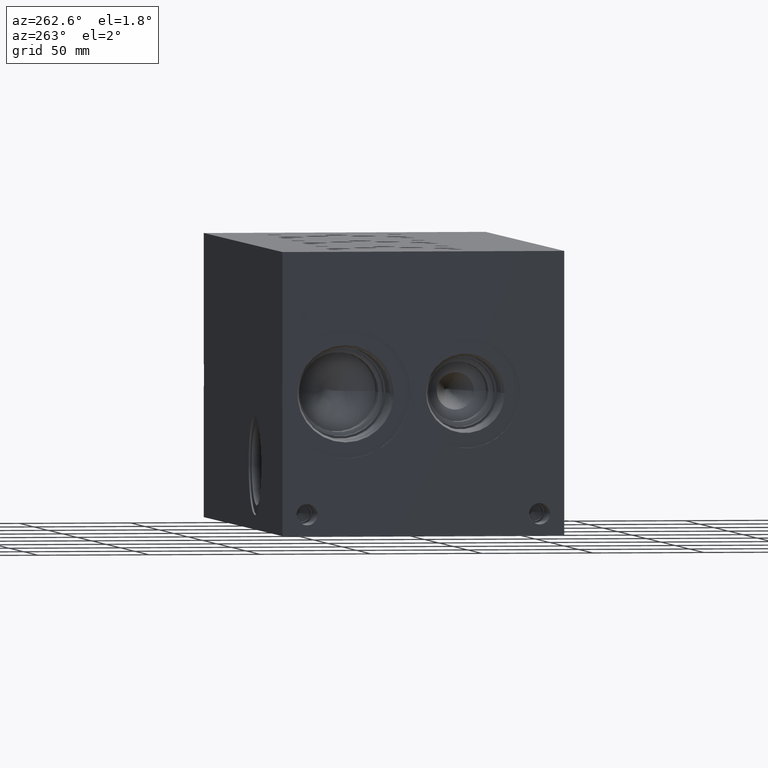
[diagram: clean part render]
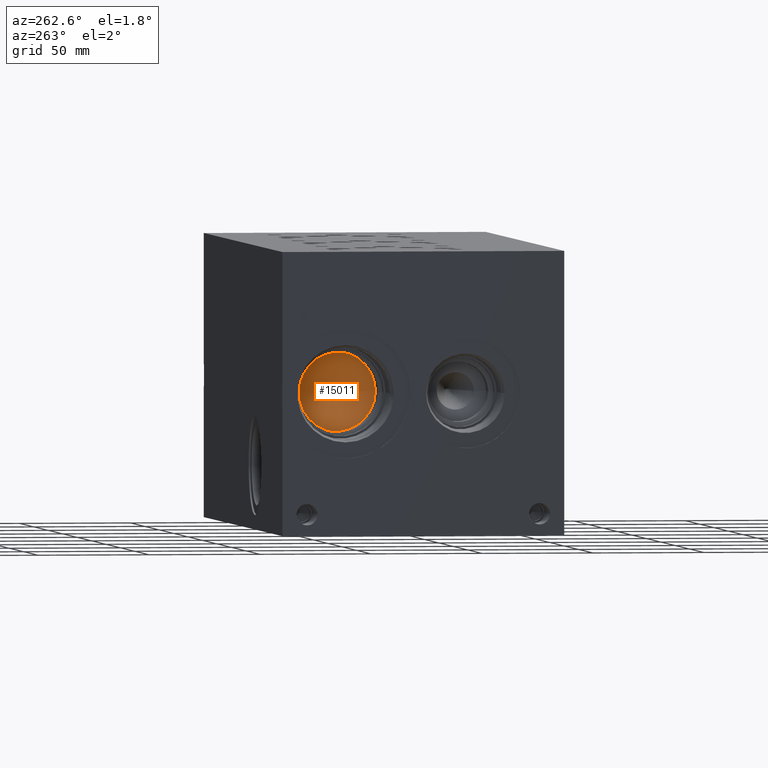
[diagram: same view with one face highlighted and labeled with its STEP entity id]
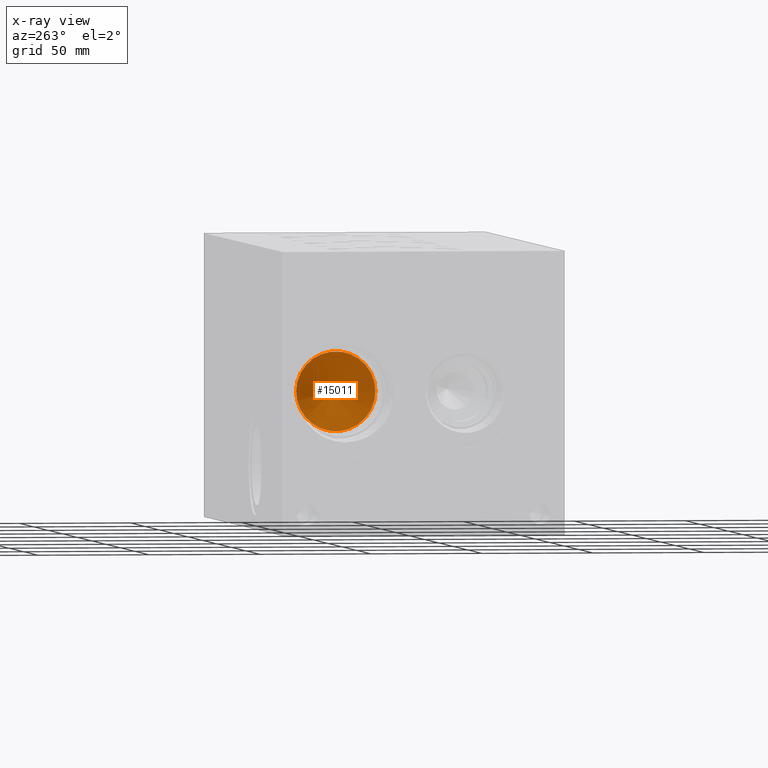
[diagram: x-ray of the same camera — body ghosted, the highlighted face saturated]
A machine part, auxiliary view. The second image highlights one B-rep face of the part: STEP entity #15011.
The next image is the same camera in x-ray: the body ghosted, the highlighted face saturated — about 0% of this face is hidden behind the body in this view.
In plain terms, the highlighted conical surface has half-angle 60 deg.
Its self-contained STEP definition (entity closure, byte-faithful):
#100=CONICAL_SURFACE('',#16011,8.9281,1.0471975511966);
#807=CIRCLE('',#16012,17.8562);
#808=CIRCLE('',#16013,17.8562);
#2110=FACE_OUTER_BOUND('',#2994,.T.);
#2994=EDGE_LOOP('',(#13194,#13195,#13196,#13197));
#4318=LINE('',#26122,#5609);
#5609=VECTOR('',#19268,8.9281);
#7043=VERTEX_POINT('',#26118);
#7044=VERTEX_POINT('',#26119);
#7045=VERTEX_POINT('',#26121);
#9124=EDGE_CURVE('',#7043,#7044,#807,.T.);
#9125=EDGE_CURVE('',#7044,#7045,#4318,.T.);
#9126=EDGE_CURVE('',#7044,#7043,#808,.T.);
#13194=ORIENTED_EDGE('',*,*,#9124,.T.);
#13195=ORIENTED_EDGE('',*,*,#9125,.T.);
#13196=ORIENTED_EDGE('',*,*,#9125,.F.);
#13197=ORIENTED_EDGE('',*,*,#9126,.T.);
#15011=ADVANCED_FACE('',(#2110),#100,.F.);
#16011=AXIS2_PLACEMENT_3D('',#26117,#19264,#19265);
#16012=AXIS2_PLACEMENT_3D('',#26120,#19266,#19267);
#16013=AXIS2_PLACEMENT_3D('',#26123,#19269,#19270);
#19264=DIRECTION('center_axis',(-1.,0.,0.));
#19265=DIRECTION('ref_axis',(0.,1.,0.));
#19266=DIRECTION('center_axis',(-1.,0.,0.));
#19267=DIRECTION('ref_axis',(0.,1.,0.));
#19268=DIRECTION('',(0.5,0.866025403784439,-1.06057523872491E-16));
#19269=DIRECTION('center_axis',(-1.,0.,0.));
#19270=DIRECTION('ref_axis',(0.,1.,0.));
#26117=CARTESIAN_POINT('Origin',(40.2828409383519,98.425,63.5));
#26118=CARTESIAN_POINT('',(35.1282,116.2812,63.5));
#26119=CARTESIAN_POINT('',(35.1282,80.5688,63.5));
#26120=CARTESIAN_POINT('Origin',(35.1282,98.425,63.5));
#26121=CARTESIAN_POINT('',(45.4374818767038,98.425,63.5));
#26122=CARTESIAN_POINT('',(40.2828409383519,89.4969,63.5));
#26123=CARTESIAN_POINT('Origin',(35.1282,98.425,63.5));